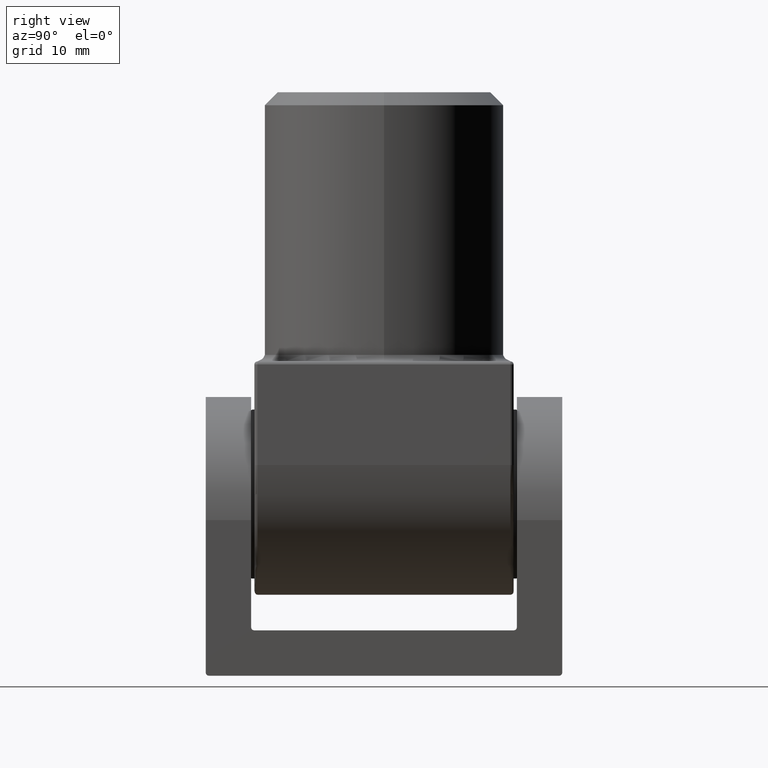
[diagram: clean part render]
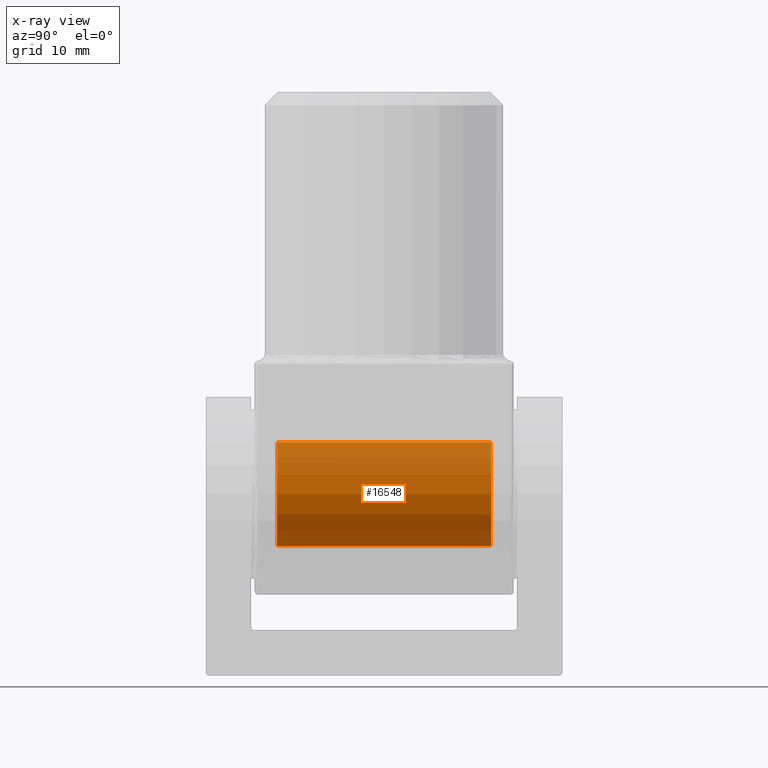
[diagram: x-ray — body ghosted, one internal face saturated and labeled with its STEP entity id]
A machine part, right view, then the same camera in x-ray: the body is ghosted and one INTERNAL B-rep face — a face not visible from any outside direction — is saturated and labeled: STEP entity #16548.
In plain terms, the highlighted cylindrical surface (partial cylindrical patch) has radius 8 mm, axis along (-0, -1, -0).
Its self-contained STEP definition (entity closure, byte-faithful):
#702 = VERTEX_POINT ( 'NONE', #10940 ) ;
#2895 = VERTEX_POINT ( 'NONE', #18978 ) ;
#3557 = CARTESIAN_POINT ( 'NONE',  ( 0.000000000000000000, 16.50000000000000000, 0.000000000000000000 ) ) ;
#5152 = DIRECTION ( 'NONE',  ( 0.000000000000000000, 0.000000000000000000, -1.000000000000000000 ) ) ;
#5323 = ORIENTED_EDGE ( 'NONE', *, *, #17735, .F. ) ;
#5448 = CARTESIAN_POINT ( 'NONE',  ( 9.797174393178827630E-16, 0.000000000000000000, 8.000000000000001776 ) ) ;
#5824 = CARTESIAN_POINT ( 'NONE',  ( 9.797174393178827630E-16, 16.50000000000000000, 8.000000000000000000 ) ) ;
#5853 = EDGE_CURVE ( 'NONE', #702, #16286, #12754, .T. ) ;
#6069 = CARTESIAN_POINT ( 'NONE',  ( 0.000000000000000000, 0.000000000000000000, -8.000000000000001776 ) ) ;
#6684 = CYLINDRICAL_SURFACE ( 'NONE', #19901, 8.000000000000001776 ) ;
#7436 = DIRECTION ( 'NONE',  ( -0.000000000000000000, -1.000000000000000000, -0.000000000000000000 ) ) ;
#8041 = AXIS2_PLACEMENT_3D ( 'NONE', #18676, #18601, #9161 ) ;
#9073 = CARTESIAN_POINT ( 'NONE',  ( 9.797174393178827630E-16, -16.50000000000000000, 8.000000000000000000 ) ) ;
#9161 = DIRECTION ( 'NONE',  ( 0.000000000000000000, 0.000000000000000000, -1.000000000000000000 ) ) ;
#9509 = EDGE_LOOP ( 'NONE', ( #15138, #17329, #5323, #10745 ) ) ;
#10745 = ORIENTED_EDGE ( 'NONE', *, *, #12481, .F. ) ;
#10940 = CARTESIAN_POINT ( 'NONE',  ( 0.000000000000000000, 16.50000000000000000, -8.000000000000000000 ) ) ;
#11082 = AXIS2_PLACEMENT_3D ( 'NONE', #3557, #14615, #5152 ) ;
#11498 = CARTESIAN_POINT ( 'NONE',  ( 0.000000000000000000, 0.000000000000000000, 0.000000000000000000 ) ) ;
#11968 = EDGE_CURVE ( 'NONE', #16286, #12146, #12700, .T. ) ;
#12146 = VERTEX_POINT ( 'NONE', #9073 ) ;
#12481 = EDGE_CURVE ( 'NONE', #702, #2895, #16147, .T. ) ;
#12700 = LINE ( 'NONE', #5448, #13180 ) ;
#12754 = CIRCLE ( 'NONE', #11082, 8.000000000000000000 ) ;
#13180 = VECTOR ( 'NONE', #19389, 1000.000000000000000 ) ;
#13611 = CIRCLE ( 'NONE', #8041, 8.000000000000000000 ) ;
#14615 = DIRECTION ( 'NONE',  ( -0.000000000000000000, -1.000000000000000000, -0.000000000000000000 ) ) ;
#15138 = ORIENTED_EDGE ( 'NONE', *, *, #5853, .T. ) ;
#16147 = LINE ( 'NONE', #6069, #18830 ) ;
#16286 = VERTEX_POINT ( 'NONE', #5824 ) ;
#16295 = FACE_OUTER_BOUND ( 'NONE', #9509, .T. ) ;
#16325 = DIRECTION ( 'NONE',  ( 0.000000000000000000, 0.000000000000000000, -1.000000000000000000 ) ) ;
#16548 = ADVANCED_FACE ( 'NONE', ( #16295 ), #6684, .T. ) ;
#17329 = ORIENTED_EDGE ( 'NONE', *, *, #11968, .T. ) ;
#17735 = EDGE_CURVE ( 'NONE', #2895, #12146, #13611, .T. ) ;
#17838 = DIRECTION ( 'NONE',  ( -0.000000000000000000, -1.000000000000000000, -0.000000000000000000 ) ) ;
#18601 = DIRECTION ( 'NONE',  ( 0.000000000000000000, -1.000000000000000000, 0.000000000000000000 ) ) ;
#18676 = CARTESIAN_POINT ( 'NONE',  ( 0.000000000000000000, -16.50000000000000000, 0.000000000000000000 ) ) ;
#18830 = VECTOR ( 'NONE', #7436, 1000.000000000000000 ) ;
#18978 = CARTESIAN_POINT ( 'NONE',  ( 0.000000000000000000, -16.50000000000000000, -8.000000000000000000 ) ) ;
#19389 = DIRECTION ( 'NONE',  ( -0.000000000000000000, -1.000000000000000000, -0.000000000000000000 ) ) ;
#19901 = AXIS2_PLACEMENT_3D ( 'NONE', #11498, #17838, #16325 ) ;